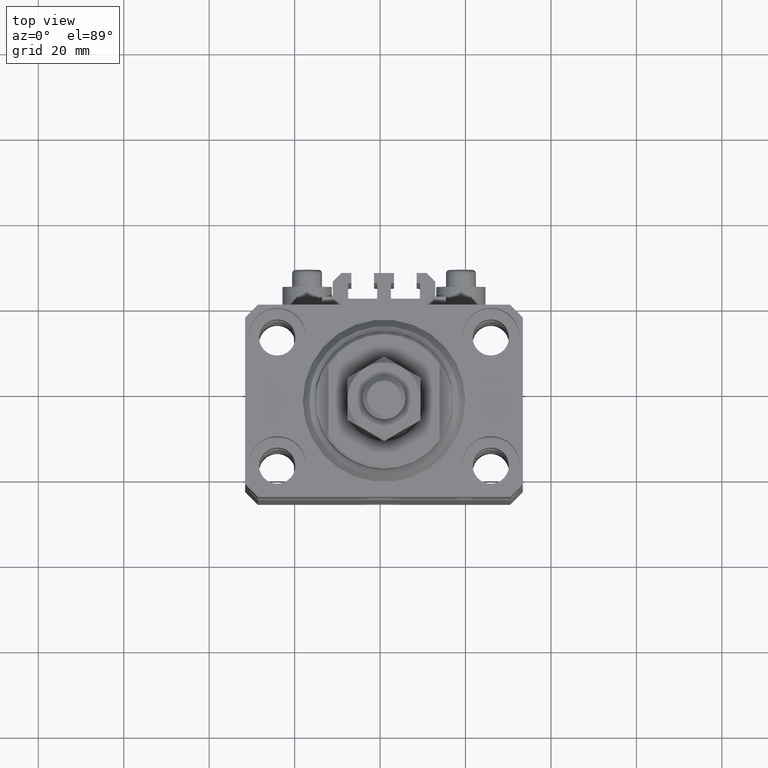
[diagram: clean part render]
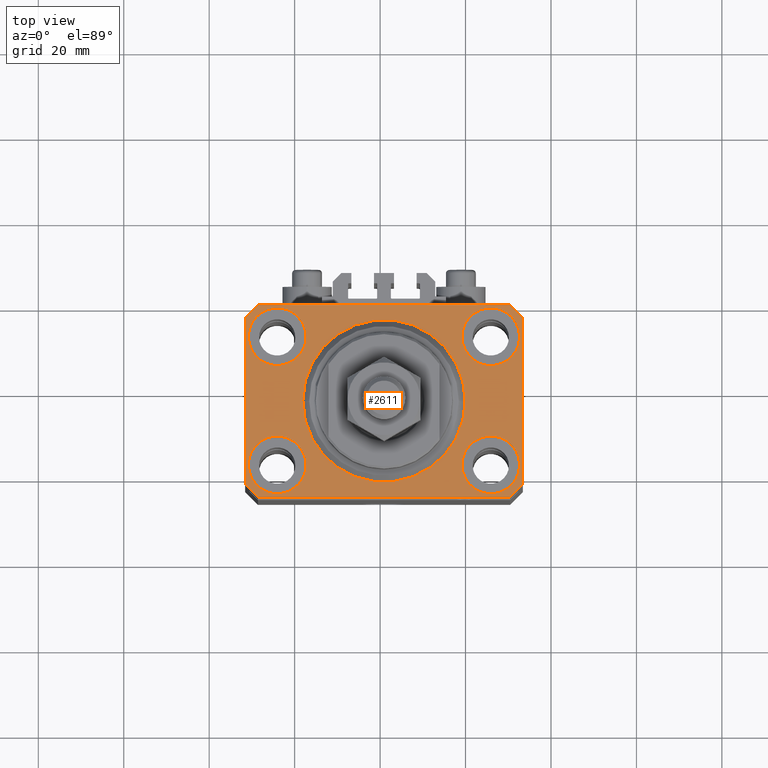
[diagram: same view with one face highlighted and labeled with its STEP entity id]
A machine part, top view. The second image highlights one B-rep face of the part: STEP entity #2611.
In plain terms, the highlighted planar face has unit normal (0, 0, 1).
Its self-contained STEP definition (entity closure, byte-faithful):
#65 = DIRECTION ( 'NONE',  ( 1.000000000000000000, 0.000000000000000000, 0.000000000000000000 ) ) ;
#692 = EDGE_CURVE ( 'NONE', #9036, #11237, #47212, .T. ) ;
#1286 = ORIENTED_EDGE ( 'NONE', *, *, #27078, .T. ) ;
#1675 = EDGE_CURVE ( 'NONE', #1825, #30265, #37669, .T. ) ;
#1717 = CIRCLE ( 'NONE', #35549, 6.749999999977465137 ) ;
#1825 = VERTEX_POINT ( 'NONE', #6997 ) ;
#2139 = VERTEX_POINT ( 'NONE', #43245 ) ;
#2193 = DIRECTION ( 'NONE',  ( 1.000000000000000000, 0.000000000000000000, 0.000000000000000000 ) ) ;
#2611 = ADVANCED_FACE ( 'NONE', ( #9943, #24964, #17591, #15374, #11666, #30623 ), #26699, .T. ) ;
#3329 = DIRECTION ( 'NONE',  ( 0.000000000000000000, 0.000000000000000000, 1.000000000000000000 ) ) ;
#3703 = EDGE_CURVE ( 'NONE', #24347, #2139, #30152, .T. ) ;
#3750 = CARTESIAN_POINT ( 'NONE',  ( 0.000000000000000000, 0.000000000000000000, 0.000000000000000000 ) ) ;
#3752 = CARTESIAN_POINT ( 'NONE',  ( 25.00000000000000355, -15.00000000000000000, 0.000000000000000000 ) ) ;
#4158 = DIRECTION ( 'NONE',  ( 0.000000000000000000, 0.000000000000000000, 1.000000000000000000 ) ) ;
#4293 = CARTESIAN_POINT ( 'NONE',  ( 32.49999999999651124, -19.49999999999949196, 0.000000000000000000 ) ) ;
#4527 = DIRECTION ( 'NONE',  ( 1.000000000000000000, 0.000000000000000000, -0.000000000000000000 ) ) ;
#5103 = LINE ( 'NONE', #27754, #47132 ) ;
#5460 = EDGE_LOOP ( 'NONE', ( #8577, #36785 ) ) ;
#5571 = CARTESIAN_POINT ( 'NONE',  ( 32.49999999999651124, -19.49999999999949196, 0.000000000000000000 ) ) ;
#5819 = CIRCLE ( 'NONE', #19987, 6.749999999977465137 ) ;
#5875 = CARTESIAN_POINT ( 'NONE',  ( -32.49999999999650413, 19.49999999999949907, 0.000000000000000000 ) ) ;
#6327 = VERTEX_POINT ( 'NONE', #37846 ) ;
#6443 = CARTESIAN_POINT ( 'NONE',  ( -29.49999999999650413, -22.49999999999949907, 0.000000000000000000 ) ) ;
#6997 = CARTESIAN_POINT ( 'NONE',  ( -31.75000000002253842, 15.00000000000000000, 0.000000000000000000 ) ) ;
#7479 = CARTESIAN_POINT ( 'NONE',  ( 29.49999999999650413, -22.49999999999949196, 0.000000000000000000 ) ) ;
#7920 = ORIENTED_EDGE ( 'NONE', *, *, #41824, .T. ) ;
#8176 = VECTOR ( 'NONE', #46504, 1000.000000000000000 ) ;
#8577 = ORIENTED_EDGE ( 'NONE', *, *, #43314, .F. ) ;
#8872 = CIRCLE ( 'NONE', #12044, 19.00000000000000000 ) ;
#9026 = DIRECTION ( 'NONE',  ( 0.7071067811865483499, 0.7071067811865466846, 0.000000000000000000 ) ) ;
#9036 = VERTEX_POINT ( 'NONE', #14600 ) ;
#9336 = AXIS2_PLACEMENT_3D ( 'NONE', #35075, #38772, #16857 ) ;
#9513 = EDGE_CURVE ( 'NONE', #35745, #25451, #14397, .T. ) ;
#9554 = DIRECTION ( 'NONE',  ( 0.000000000000000000, -1.000000000000000000, 0.000000000000000000 ) ) ;
#9943 = FACE_BOUND ( 'NONE', #38124, .T. ) ;
#10049 = AXIS2_PLACEMENT_3D ( 'NONE', #20192, #19957, #2193 ) ;
#10210 = CARTESIAN_POINT ( 'NONE',  ( 29.49999999999707967, 22.49999999999951328, 0.000000000000000000 ) ) ;
#10464 = CARTESIAN_POINT ( 'NONE',  ( 0.000000000000000000, 0.000000000000000000, 0.000000000000000000 ) ) ;
#10895 = EDGE_CURVE ( 'NONE', #37894, #40089, #42564, .T. ) ;
#11026 = DIRECTION ( 'NONE',  ( 1.000000000000000000, 0.000000000000000000, 0.000000000000000000 ) ) ;
#11237 = VERTEX_POINT ( 'NONE', #46451 ) ;
#11257 = DIRECTION ( 'NONE',  ( 0.000000000000000000, 0.000000000000000000, 1.000000000000000000 ) ) ;
#11539 = CARTESIAN_POINT ( 'NONE',  ( 25.00000000000000355, -15.00000000000000000, 0.000000000000000000 ) ) ;
#11663 = VECTOR ( 'NONE', #40176, 1000.000000000000114 ) ;
#11666 = FACE_BOUND ( 'NONE', #5460, .T. ) ;
#12044 = AXIS2_PLACEMENT_3D ( 'NONE', #10464, #3329, #14148 ) ;
#12215 = CARTESIAN_POINT ( 'NONE',  ( 32.49999999999702993, 19.49999999999945999, 0.000000000000000000 ) ) ;
#12487 = CIRCLE ( 'NONE', #39246, 6.750000000041541881 ) ;
#12608 = VERTEX_POINT ( 'NONE', #24221 ) ;
#12723 = VERTEX_POINT ( 'NONE', #7479 ) ;
#13231 = CARTESIAN_POINT ( 'NONE',  ( 29.49999999999707967, 22.49999999999951328, 0.000000000000000000 ) ) ;
#13450 = CARTESIAN_POINT ( 'NONE',  ( -32.49999999999650413, -19.49999999999949907, 0.000000000000000000 ) ) ;
#13614 = AXIS2_PLACEMENT_3D ( 'NONE', #3750, #30343, #22713 ) ;
#13617 = CARTESIAN_POINT ( 'NONE',  ( 24.99999999999999645, 15.00000000000000888, 0.000000000000000000 ) ) ;
#13862 = DIRECTION ( 'NONE',  ( 0.000000000000000000, 0.000000000000000000, 1.000000000000000000 ) ) ;
#14076 = VERTEX_POINT ( 'NONE', #24106 ) ;
#14148 = DIRECTION ( 'NONE',  ( 1.000000000000000000, 0.000000000000000000, 0.000000000000000000 ) ) ;
#14397 = CIRCLE ( 'NONE', #13614, 19.00000000000000000 ) ;
#14600 = CARTESIAN_POINT ( 'NONE',  ( -32.49999999999650413, -19.49999999999949907, 0.000000000000000000 ) ) ;
#14700 = EDGE_CURVE ( 'NONE', #11237, #12723, #44372, .T. ) ;
#14996 = EDGE_CURVE ( 'NONE', #45599, #6327, #5819, .T. ) ;
#15077 = ORIENTED_EDGE ( 'NONE', *, *, #34661, .T. ) ;
#15339 = CIRCLE ( 'NONE', #37365, 6.750000000041541881 ) ;
#15369 = ORIENTED_EDGE ( 'NONE', *, *, #14996, .F. ) ;
#15374 = FACE_BOUND ( 'NONE', #44745, .T. ) ;
#16374 = VERTEX_POINT ( 'NONE', #29807 ) ;
#16857 = DIRECTION ( 'NONE',  ( 1.000000000000000000, 0.000000000000000000, 0.000000000000000000 ) ) ;
#17386 = EDGE_CURVE ( 'NONE', #12608, #14076, #15339, .T. ) ;
#17487 = EDGE_CURVE ( 'NONE', #30265, #1825, #46015, .T. ) ;
#17591 = FACE_BOUND ( 'NONE', #27290, .T. ) ;
#17787 = LINE ( 'NONE', #18522, #11663 ) ;
#17872 = CARTESIAN_POINT ( 'NONE',  ( -19.00000000000000000, 2.326828918379970970E-15, 0.000000000000000000 ) ) ;
#17910 = EDGE_LOOP ( 'NONE', ( #20614, #15369 ) ) ;
#18522 = CARTESIAN_POINT ( 'NONE',  ( -29.49999999999650413, 22.49999999999949907, 0.000000000000000000 ) ) ;
#18802 = AXIS2_PLACEMENT_3D ( 'NONE', #26457, #25958, #4527 ) ;
#19181 = DIRECTION ( 'NONE',  ( 1.000000000000000000, 0.000000000000000000, 0.000000000000000000 ) ) ;
#19846 = LINE ( 'NONE', #12215, #45709 ) ;
#19957 = DIRECTION ( 'NONE',  ( 0.000000000000000000, 0.000000000000000000, 1.000000000000000000 ) ) ;
#19987 = AXIS2_PLACEMENT_3D ( 'NONE', #11539, #4158, #19181 ) ;
#20074 = ORIENTED_EDGE ( 'NONE', *, *, #692, .T. ) ;
#20192 = CARTESIAN_POINT ( 'NONE',  ( 24.99999999999999645, 15.00000000000000888, 0.000000000000000000 ) ) ;
#20614 = ORIENTED_EDGE ( 'NONE', *, *, #38013, .F. ) ;
#21370 = CARTESIAN_POINT ( 'NONE',  ( -25.00000000000000355, -15.00000000000000000, 0.000000000000000000 ) ) ;
#21840 = VERTEX_POINT ( 'NONE', #30881 ) ;
#21883 = ORIENTED_EDGE ( 'NONE', *, *, #17487, .F. ) ;
#21999 = DIRECTION ( 'NONE',  ( 1.000000000000000000, 0.000000000000000000, 0.000000000000000000 ) ) ;
#22713 = DIRECTION ( 'NONE',  ( 1.000000000000000000, 0.000000000000000000, 0.000000000000000000 ) ) ;
#23542 = DIRECTION ( 'NONE',  ( -0.7071067811865352493, 0.7071067811865597852, 0.000000000000000000 ) ) ;
#23712 = AXIS2_PLACEMENT_3D ( 'NONE', #13617, #13862, #21999 ) ;
#24106 = CARTESIAN_POINT ( 'NONE',  ( -31.75000000004154899, -15.00000000000000000, 0.000000000000000000 ) ) ;
#24221 = CARTESIAN_POINT ( 'NONE',  ( -18.24999999995846167, -15.00000000000000000, 0.000000000000000000 ) ) ;
#24347 = VERTEX_POINT ( 'NONE', #5571 ) ;
#24964 = FACE_BOUND ( 'NONE', #17910, .T. ) ;
#25451 = VERTEX_POINT ( 'NONE', #46663 ) ;
#25958 = DIRECTION ( 'NONE',  ( 0.000000000000000000, 0.000000000000000000, 1.000000000000000000 ) ) ;
#26457 = CARTESIAN_POINT ( 'NONE',  ( 0.000000000000000000, 0.000000000000000000, 0.000000000000000000 ) ) ;
#26699 = PLANE ( 'NONE',  #18802 ) ;
#26946 = DIRECTION ( 'NONE',  ( 1.334402673828349134E-14, 1.000000000000000000, 0.000000000000000000 ) ) ;
#27078 = EDGE_CURVE ( 'NONE', #40089, #16374, #17787, .T. ) ;
#27290 = EDGE_LOOP ( 'NONE', ( #27780, #29597 ) ) ;
#27392 = EDGE_CURVE ( 'NONE', #30153, #21840, #32877, .T. ) ;
#27754 = CARTESIAN_POINT ( 'NONE',  ( 29.49999999999650413, -22.49999999999949196, 0.000000000000000000 ) ) ;
#27764 = ORIENTED_EDGE ( 'NONE', *, *, #31646, .T. ) ;
#27780 = ORIENTED_EDGE ( 'NONE', *, *, #36929, .F. ) ;
#27807 = LINE ( 'NONE', #5875, #37965 ) ;
#28491 = DIRECTION ( 'NONE',  ( 0.7071067811865474617, -0.7071067811865474617, 0.000000000000000000 ) ) ;
#29597 = ORIENTED_EDGE ( 'NONE', *, *, #27392, .F. ) ;
#29807 = CARTESIAN_POINT ( 'NONE',  ( -32.49999999999650413, 19.49999999999949907, 0.000000000000000000 ) ) ;
#30052 = EDGE_CURVE ( 'NONE', #14076, #12608, #12487, .T. ) ;
#30152 = LINE ( 'NONE', #4293, #39349 ) ;
#30153 = VERTEX_POINT ( 'NONE', #31079 ) ;
#30265 = VERTEX_POINT ( 'NONE', #40141 ) ;
#30343 = DIRECTION ( 'NONE',  ( 0.000000000000000000, 0.000000000000000000, 1.000000000000000000 ) ) ;
#30392 = ORIENTED_EDGE ( 'NONE', *, *, #14700, .T. ) ;
#30623 = FACE_OUTER_BOUND ( 'NONE', #42910, .T. ) ;
#30881 = CARTESIAN_POINT ( 'NONE',  ( 31.74999999995845101, 15.00000000000000888, 0.000000000000000000 ) ) ;
#31079 = CARTESIAN_POINT ( 'NONE',  ( 18.25000000004154543, 15.00000000000000888, 0.000000000000000000 ) ) ;
#31218 = ORIENTED_EDGE ( 'NONE', *, *, #10895, .T. ) ;
#31646 = EDGE_CURVE ( 'NONE', #12723, #24347, #5103, .T. ) ;
#32692 = DIRECTION ( 'NONE',  ( 0.000000000000000000, 0.000000000000000000, 1.000000000000000000 ) ) ;
#32877 = CIRCLE ( 'NONE', #10049, 6.749999999958452790 ) ;
#33045 = DIRECTION ( 'NONE',  ( 0.000000000000000000, 0.000000000000000000, 1.000000000000000000 ) ) ;
#33256 = CARTESIAN_POINT ( 'NONE',  ( 18.25000000002253842, -15.00000000000000000, 0.000000000000000000 ) ) ;
#33524 = DIRECTION ( 'NONE',  ( 1.000000000000000000, 1.176083712526788232E-16, 0.000000000000000000 ) ) ;
#33565 = CARTESIAN_POINT ( 'NONE',  ( -25.00000000000000355, -15.00000000000000000, 0.000000000000000000 ) ) ;
#34197 = AXIS2_PLACEMENT_3D ( 'NONE', #48470, #11257, #44765 ) ;
#34661 = EDGE_CURVE ( 'NONE', #2139, #37894, #19846, .T. ) ;
#35075 = CARTESIAN_POINT ( 'NONE',  ( -25.00000000000000355, 15.00000000000000000, 0.000000000000000000 ) ) ;
#35254 = ORIENTED_EDGE ( 'NONE', *, *, #1675, .F. ) ;
#35549 = AXIS2_PLACEMENT_3D ( 'NONE', #3752, #33045, #48091 ) ;
#35745 = VERTEX_POINT ( 'NONE', #17872 ) ;
#36785 = ORIENTED_EDGE ( 'NONE', *, *, #9513, .F. ) ;
#36929 = EDGE_CURVE ( 'NONE', #21840, #30153, #37889, .T. ) ;
#37365 = AXIS2_PLACEMENT_3D ( 'NONE', #21370, #32692, #11026 ) ;
#37669 = CIRCLE ( 'NONE', #9336, 6.750000000022533087 ) ;
#37846 = CARTESIAN_POINT ( 'NONE',  ( 31.74999999997746869, -15.00000000000000000, 0.000000000000000000 ) ) ;
#37889 = CIRCLE ( 'NONE', #23712, 6.749999999958452790 ) ;
#37894 = VERTEX_POINT ( 'NONE', #10210 ) ;
#37965 = VECTOR ( 'NONE', #9554, 1000.000000000000000 ) ;
#38013 = EDGE_CURVE ( 'NONE', #6327, #45599, #1717, .T. ) ;
#38124 = EDGE_LOOP ( 'NONE', ( #43875, #38847 ) ) ;
#38232 = DIRECTION ( 'NONE',  ( 0.000000000000000000, 0.000000000000000000, 1.000000000000000000 ) ) ;
#38772 = DIRECTION ( 'NONE',  ( 0.000000000000000000, 0.000000000000000000, 1.000000000000000000 ) ) ;
#38847 = ORIENTED_EDGE ( 'NONE', *, *, #30052, .F. ) ;
#38855 = VECTOR ( 'NONE', #33524, 1000.000000000000000 ) ;
#39246 = AXIS2_PLACEMENT_3D ( 'NONE', #33565, #38232, #65 ) ;
#39349 = VECTOR ( 'NONE', #26946, 1000.000000000000000 ) ;
#40083 = CARTESIAN_POINT ( 'NONE',  ( -29.49999999999650413, 22.49999999999949907, 0.000000000000000000 ) ) ;
#40089 = VERTEX_POINT ( 'NONE', #40083 ) ;
#40141 = CARTESIAN_POINT ( 'NONE',  ( -18.24999999997747224, 15.00000000000000000, 0.000000000000000000 ) ) ;
#40176 = DIRECTION ( 'NONE',  ( -0.7071067811865474617, -0.7071067811865474617, 0.000000000000000000 ) ) ;
#41824 = EDGE_CURVE ( 'NONE', #16374, #9036, #27807, .T. ) ;
#42564 = LINE ( 'NONE', #13231, #8176 ) ;
#42910 = EDGE_LOOP ( 'NONE', ( #31218, #1286, #7920, #20074, #30392, #27764, #43203, #15077 ) ) ;
#43203 = ORIENTED_EDGE ( 'NONE', *, *, #3703, .T. ) ;
#43245 = CARTESIAN_POINT ( 'NONE',  ( 32.49999999999702993, 19.49999999999945999, 0.000000000000000000 ) ) ;
#43314 = EDGE_CURVE ( 'NONE', #25451, #35745, #8872, .T. ) ;
#43875 = ORIENTED_EDGE ( 'NONE', *, *, #17386, .F. ) ;
#44372 = LINE ( 'NONE', #6443, #38855 ) ;
#44745 = EDGE_LOOP ( 'NONE', ( #21883, #35254 ) ) ;
#44765 = DIRECTION ( 'NONE',  ( 1.000000000000000000, 0.000000000000000000, 0.000000000000000000 ) ) ;
#45599 = VERTEX_POINT ( 'NONE', #33256 ) ;
#45709 = VECTOR ( 'NONE', #23542, 1000.000000000000000 ) ;
#46015 = CIRCLE ( 'NONE', #34197, 6.750000000022533087 ) ;
#46451 = CARTESIAN_POINT ( 'NONE',  ( -29.49999999999650413, -22.49999999999949907, 0.000000000000000000 ) ) ;
#46504 = DIRECTION ( 'NONE',  ( -1.000000000000000000, -2.352167425053553784E-16, 0.000000000000000000 ) ) ;
#46663 = CARTESIAN_POINT ( 'NONE',  ( 19.00000000000000000, 0.000000000000000000, 0.000000000000000000 ) ) ;
#46959 = VECTOR ( 'NONE', #28491, 1000.000000000000114 ) ;
#47132 = VECTOR ( 'NONE', #9026, 1000.000000000000000 ) ;
#47212 = LINE ( 'NONE', #13450, #46959 ) ;
#48091 = DIRECTION ( 'NONE',  ( 1.000000000000000000, 0.000000000000000000, 0.000000000000000000 ) ) ;
#48470 = CARTESIAN_POINT ( 'NONE',  ( -25.00000000000000355, 15.00000000000000000, 0.000000000000000000 ) ) ;